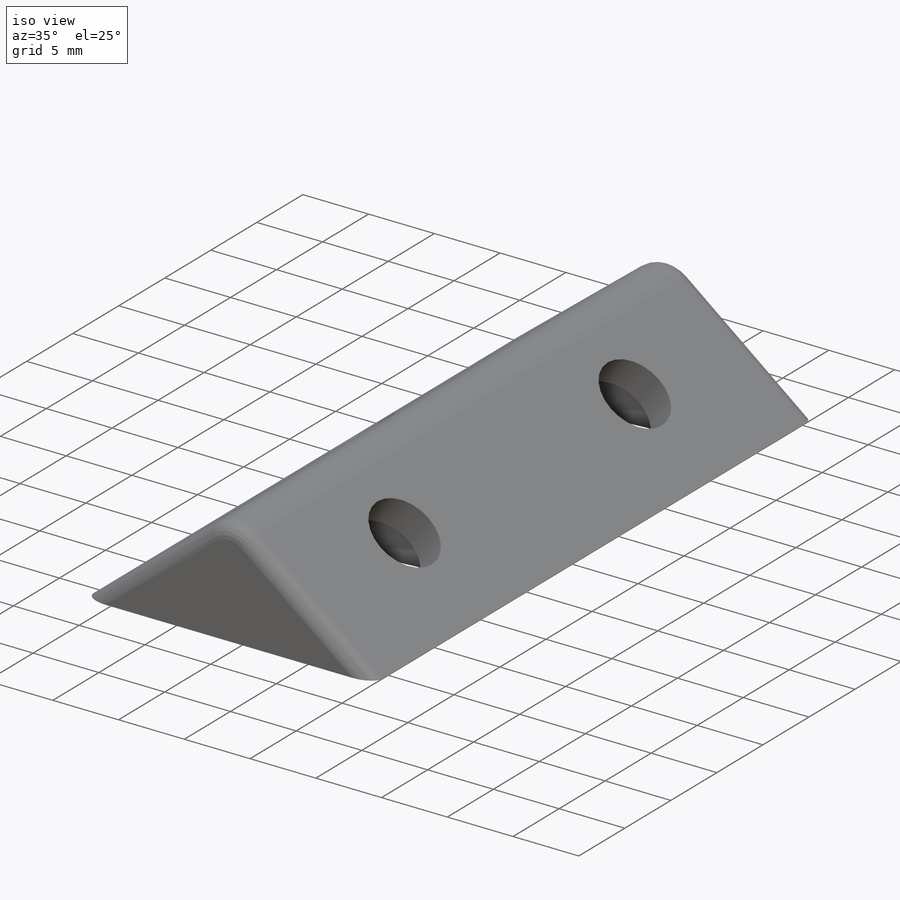
[diagram: iso view]
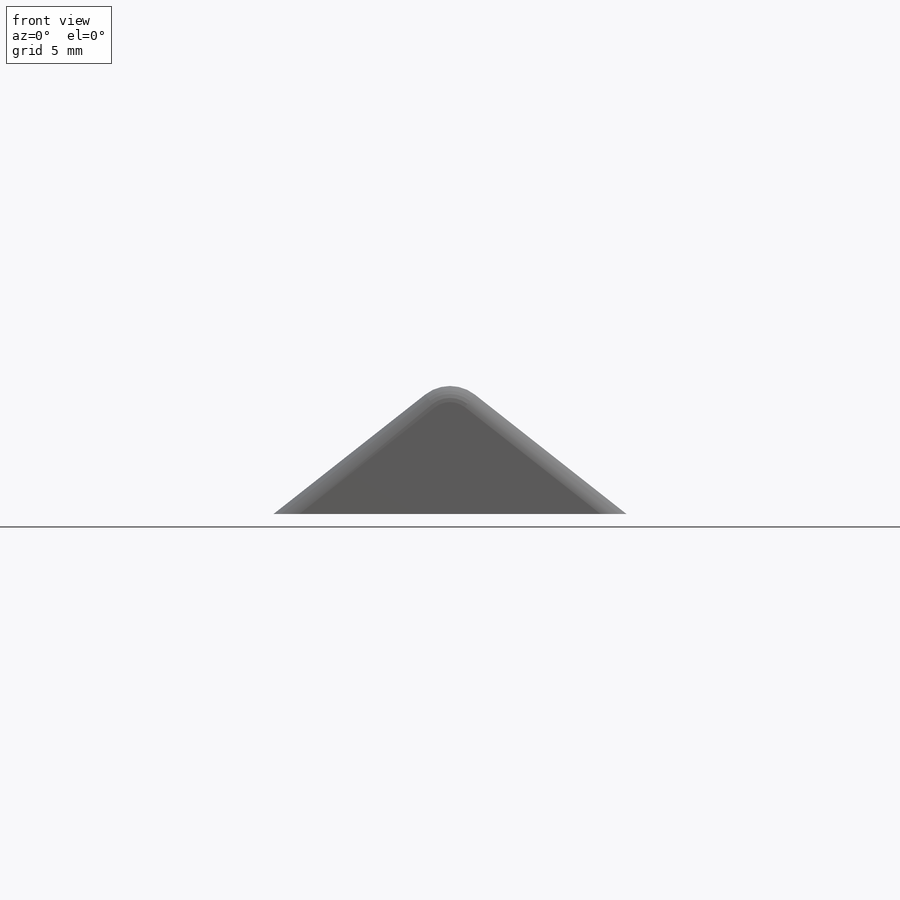
[diagram: front view]
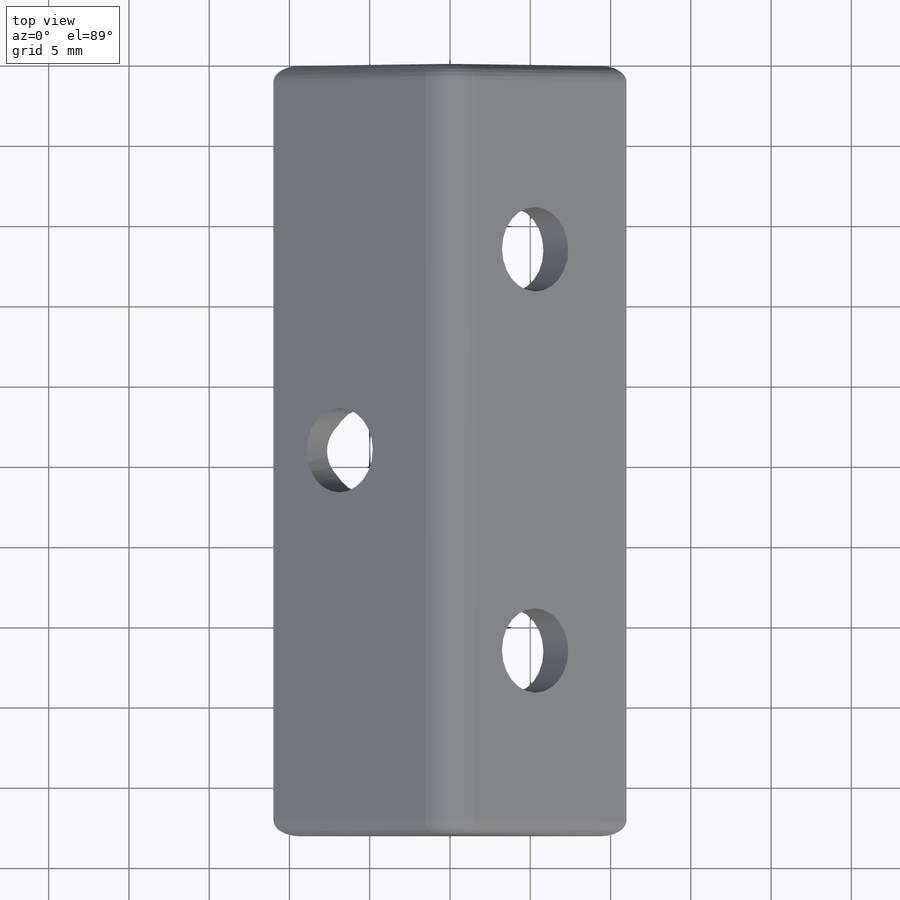
[diagram: top view]
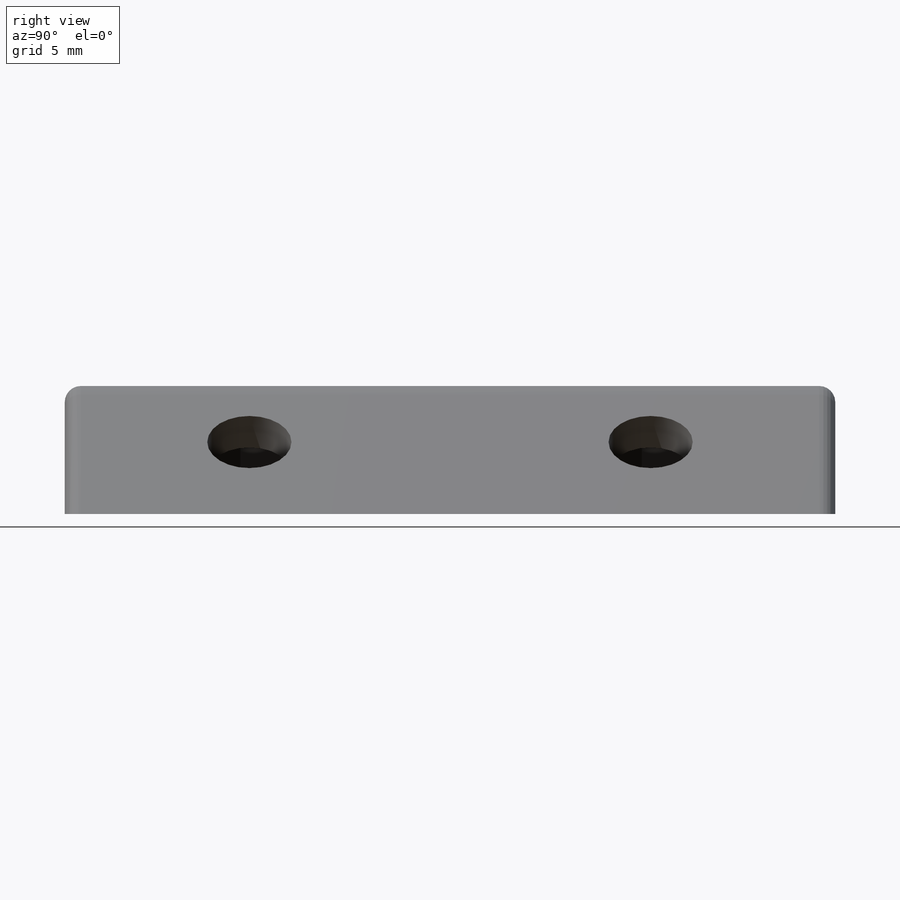
[diagram: right view]
SOLIDWORKS PART (.sldprt)
format: sldprt  version: not decoded by parser v0  size: 268,800 bytes
history: native  units: mm
features: sketch x5, cut_extrude x4, fillet x3, plane x2, material x1, extrude x1 (+13 scaffold rows collapsed)
feature tree (29):
  scaffold x13  (default folders/planes/origin — collapsed)
  material  "Material <not specified>"
  sketch  "Sketch2"  dims[D1=22.0mm D2=14.0mm D3=14.0mm]
  extrude  "Boss-Extrude3"  Depth=48mm
  sketch  "Sketch4"  dims[D1=5.25mm D2=8.75mm]
  cut_extrude  "Cut-Extrude2"  [1 undecoded]
  sketch  "Sketch5"  dims[D1=5.25mm D2=5.25mm D3=25.0mm D4=6.75mm]
  cut_extrude  "Cut-Extrude3"  [1 undecoded]
  fillet  "Fillet2"  Radius=2.5mm
  plane  "Plane1"  Offset=15mm
  sketch  "Sketch6"  dims[D1=8.1mm D2=8.1mm]
  cut_extrude  "Cut-Extrude4"  Depth=12.5mm
  plane  "Plane2"  Offset=15mm
  sketch  "Sketch7"  dims[D1=8.1mm]
  cut_extrude  "Cut-Extrude6"  Depth=12.5mm
  fillet  "Fillet3"  Radius=1mm
  fillet  "Fillet4"  Radius=1mm
decode coverage: 11 of 13 modeling features carry decoded parameters
note: 2 parameter values undecoded
note: suppression state not decoded; provenance and decode notes live in map.json
